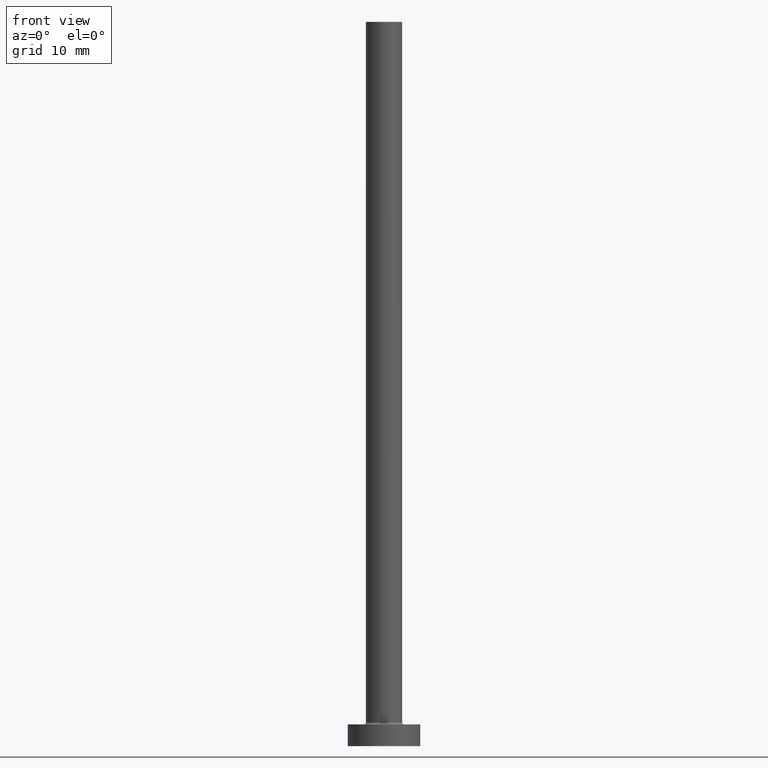
[diagram: clean part render]
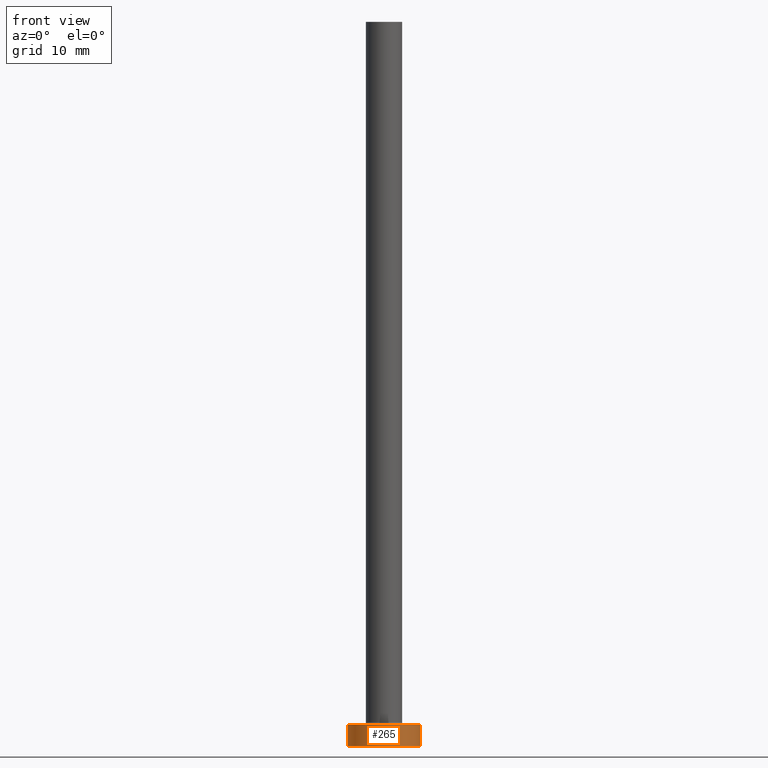
[diagram: same view with one face highlighted and labeled with its STEP entity id]
A machine part, front view. The second image highlights one B-rep face of the part: STEP entity #265.
In plain terms, the highlighted cylindrical surface (edge-blend (fillet) strip) has radius 5 mm, axis along (-0, -0, -1).
Its self-contained STEP definition (entity closure, byte-faithful):
#14 = VERTEX_POINT ( 'NONE', #15 ) ;
#15 = CARTESIAN_POINT ( 'NONE',  ( 5.000000000000000000, 6.123233995736766282E-16, 3.000000000000000000 ) ) ;
#24 = VERTEX_POINT ( 'NONE', #162 ) ;
#25 = CARTESIAN_POINT ( 'NONE',  ( 5.000000000000000000, 6.123233995736766282E-16, 3.000000000000000000 ) ) ;
#27 = FACE_OUTER_BOUND ( 'NONE', #388, .T. ) ;
#42 = CARTESIAN_POINT ( 'NONE',  ( 0.000000000000000000, 0.000000000000000000, 3.000000000000000000 ) ) ;
#49 = VERTEX_POINT ( 'NONE', #192 ) ;
#58 = CARTESIAN_POINT ( 'NONE',  ( -5.000000000000000000, 0.000000000000000000, 3.000000000000000000 ) ) ;
#59 = CARTESIAN_POINT ( 'NONE',  ( -5.000000000000000000, 0.000000000000000000, 3.000000000000000000 ) ) ;
#69 = DIRECTION ( 'NONE',  ( 0.000000000000000000, 0.000000000000000000, 1.000000000000000000 ) ) ;
#125 = EDGE_CURVE ( 'NONE', #307, #49, #205, .T. ) ;
#142 = EDGE_CURVE ( 'NONE', #307, #14, #249, .T. ) ;
#144 = ORIENTED_EDGE ( 'NONE', *, *, #142, .F. ) ;
#151 = ORIENTED_EDGE ( 'NONE', *, *, #345, .T. ) ;
#160 = ORIENTED_EDGE ( 'NONE', *, *, #310, .F. ) ;
#162 = CARTESIAN_POINT ( 'NONE',  ( 5.000000000000000000, 6.123233995736766282E-16, 0.000000000000000000 ) ) ;
#167 = VECTOR ( 'NONE', #168, 1000.000000000000000 ) ;
#168 = DIRECTION ( 'NONE',  ( -0.000000000000000000, -0.000000000000000000, -1.000000000000000000 ) ) ;
#174 = DIRECTION ( 'NONE',  ( -0.000000000000000000, -0.000000000000000000, -1.000000000000000000 ) ) ;
#189 = DIRECTION ( 'NONE',  ( 0.000000000000000000, 0.000000000000000000, 1.000000000000000000 ) ) ;
#192 = CARTESIAN_POINT ( 'NONE',  ( -5.000000000000000000, 0.000000000000000000, 0.000000000000000000 ) ) ;
#201 = LINE ( 'NONE', #25, #167 ) ;
#205 = LINE ( 'NONE', #58, #305 ) ;
#241 = AXIS2_PLACEMENT_3D ( 'NONE', #42, #189, #365 ) ;
#243 = AXIS2_PLACEMENT_3D ( 'NONE', #460, #69, #288 ) ;
#249 = CIRCLE ( 'NONE', #241, 5.000000000000000000 ) ;
#251 = CARTESIAN_POINT ( 'NONE',  ( 0.000000000000000000, 0.000000000000000000, 3.000000000000000000 ) ) ;
#265 = ADVANCED_FACE ( 'NONE', ( #27 ), #342, .T. ) ;
#288 = DIRECTION ( 'NONE',  ( 1.000000000000000000, 0.000000000000000000, 0.000000000000000000 ) ) ;
#305 = VECTOR ( 'NONE', #407, 1000.000000000000000 ) ;
#306 = AXIS2_PLACEMENT_3D ( 'NONE', #251, #174, #454 ) ;
#307 = VERTEX_POINT ( 'NONE', #59 ) ;
#310 = EDGE_CURVE ( 'NONE', #14, #24, #201, .T. ) ;
#342 = CYLINDRICAL_SURFACE ( 'NONE', #306, 5.000000000000000000 ) ;
#345 = EDGE_CURVE ( 'NONE', #49, #24, #459, .T. ) ;
#365 = DIRECTION ( 'NONE',  ( 1.000000000000000000, 0.000000000000000000, 0.000000000000000000 ) ) ;
#385 = ORIENTED_EDGE ( 'NONE', *, *, #125, .T. ) ;
#388 = EDGE_LOOP ( 'NONE', ( #160, #144, #385, #151 ) ) ;
#407 = DIRECTION ( 'NONE',  ( -0.000000000000000000, -0.000000000000000000, -1.000000000000000000 ) ) ;
#454 = DIRECTION ( 'NONE',  ( -1.000000000000000000, 0.000000000000000000, 0.000000000000000000 ) ) ;
#459 = CIRCLE ( 'NONE', #243, 5.000000000000000000 ) ;
#460 = CARTESIAN_POINT ( 'NONE',  ( 0.000000000000000000, 0.000000000000000000, 0.000000000000000000 ) ) ;